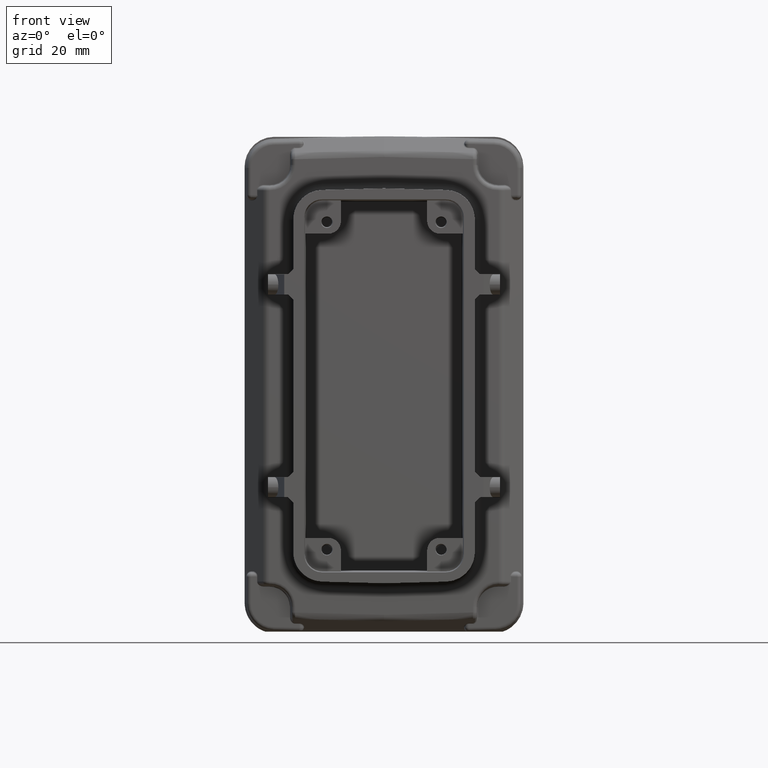
[diagram: clean part render]
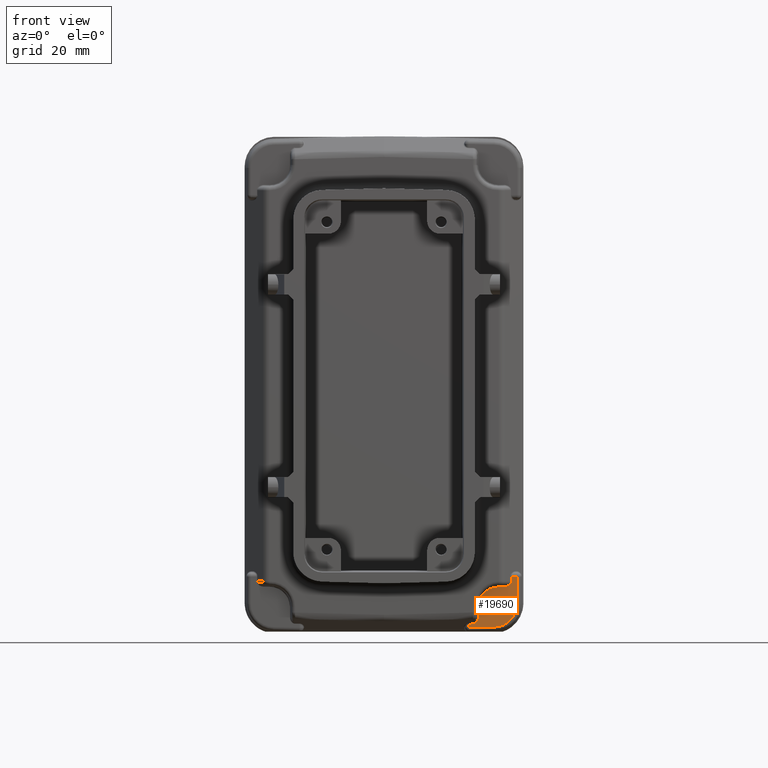
[diagram: same view with one face highlighted and labeled with its STEP entity id]
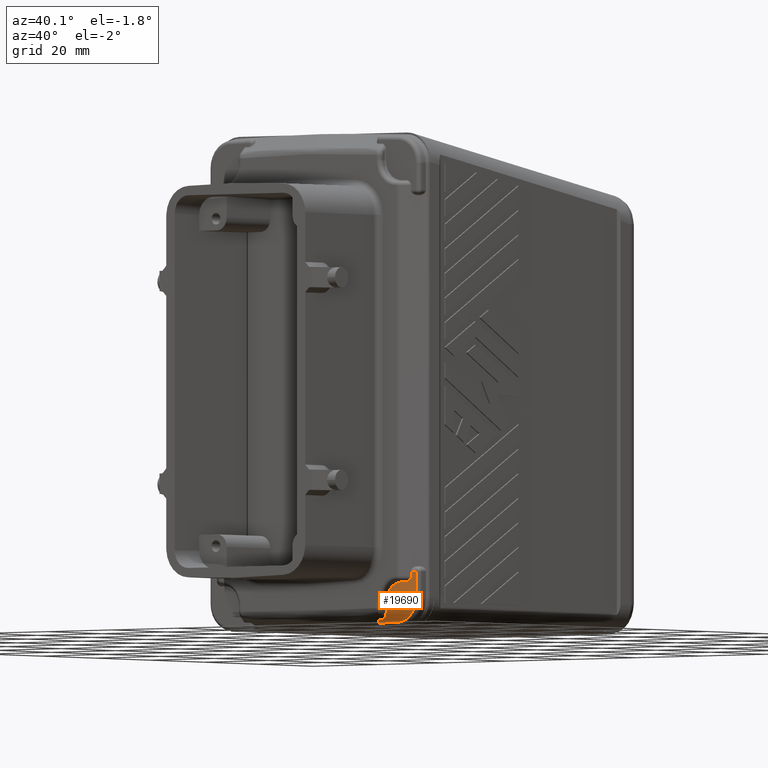
[diagram: same view with one face highlighted and labeled with its STEP entity id]
A machine part, front view. The second image highlights one B-rep face of the part: STEP entity #19690.
A second angle (auxiliary view) of the same face is appended — the face is thin or edge-on in the first view.
In plain terms, the highlighted planar face has unit normal (0, -1, 0).
Its self-contained STEP definition (entity closure, byte-faithful):
#17310=CARTESIAN_POINT('',(78.4446589845096,48.5366080000221,
-62.063839701323));
#17320=DIRECTION('',(0.,-1.,0.));
#17330=DIRECTION('',(-1.,-0.,0.));
#17340=AXIS2_PLACEMENT_3D('',#17310,#17320,#17330);
#17350=PLANE('',#17340);
#17360=CARTESIAN_POINT('',(78.1570667262473,48.5366080000221,
-62.3659833571352));
#17370=DIRECTION('',(0.,0.,-1.));
#17380=VECTOR('',#17370,1.);
#17390=LINE('',#17360,#17380);
#17400=CARTESIAN_POINT('',(78.1570667262473,48.5366080000221,
-62.3659833571352));
#17410=VERTEX_POINT('',#17400);
#17420=CARTESIAN_POINT('',(78.1570667262473,48.5366080000221,
-68.7900255583721));
#17430=VERTEX_POINT('',#17420);
#17440=EDGE_CURVE('',#17410,#17430,#17390,.T.);
#17450=ORIENTED_EDGE('',*,*,#17440,.F.);
#17460=CARTESIAN_POINT('',(72.6570667262474,48.5366080000221,
-68.7900255583722));
#17470=DIRECTION('',(0.,-1.,0.));
#17480=DIRECTION('',(-1.,-0.,0.));
#17490=AXIS2_PLACEMENT_3D('',#17460,#17470,#17480);
#17500=CIRCLE('',#17490,5.49999999999997);
#17510=CARTESIAN_POINT('',(72.8032594035732,48.5366080000221,
-74.288082278805));
#17520=VERTEX_POINT('',#17510);
#17530=EDGE_CURVE('',#17520,#17430,#17500,.T.);
#17540=ORIENTED_EDGE('',*,*,#17530,.T.);
#17550=CARTESIAN_POINT('',(66.6535023957567,48.5366080000221,
-74.451603589623));
#17560=DIRECTION('',(0.999646676442327,0.,0.0265804867865411));
#17570=VECTOR('',#17560,1.);
#17580=LINE('',#17550,#17570);
#17590=CARTESIAN_POINT('',(66.6535023957567,48.5366080000221,
-74.451603589623));
#17600=VERTEX_POINT('',#17590);
#17610=EDGE_CURVE('',#17600,#17520,#17580,.T.);
#17620=ORIENTED_EDGE('',*,*,#17610,.T.);
#17630=CARTESIAN_POINT('',(66.6535023957567,48.5366080000221,
-73.6171769037697));
#17640=DIRECTION('',(0.,0.,-1.));
#17650=VECTOR('',#17640,1.);
#17660=LINE('',#17630,#17650);
#17670=CARTESIAN_POINT('',(66.6535023957567,48.5366080000221,
-73.6171769037697));
#17680=VERTEX_POINT('',#17670);
#17690=EDGE_CURVE('',#17680,#17600,#17660,.T.);
#17700=ORIENTED_EDGE('',*,*,#17690,.T.);
#17710=CARTESIAN_POINT('',(67.6835364396617,48.5366080000221,
-73.5897884135921));
#17720=DIRECTION('',(-0.999646676264717,0.,-0.0265804934661675));
#17730=VECTOR('',#17720,1.);
#17740=LINE('',#17710,#17730);
#17750=CARTESIAN_POINT('',(67.6835364396617,48.5366080000221,
-73.5897884135921));
#17760=VERTEX_POINT('',#17750);
#17770=EDGE_CURVE('',#17760,#17680,#17740,.T.);
#17780=ORIENTED_EDGE('',*,*,#17770,.T.);
#17790=CARTESIAN_POINT('',(68.9570667262473,48.5366080000221,
-71.8928199143742));
#17800=CARTESIAN_POINT('',(68.9567444653897,48.5366080000221,
-71.9238029725956));
#17810=CARTESIAN_POINT('',(68.9564170294089,48.5366080000221,
-71.9547880094138));
#17820=CARTESIAN_POINT('',(68.9539977406632,48.5366080000221,
-72.0123987379919));
#17830=CARTESIAN_POINT('',(68.9523965079607,48.5366080000221,
-72.0390285902249));
#17840=CARTESIAN_POINT('',(68.9476182845529,48.5366080000221,
-72.0999848787994));
#17850=CARTESIAN_POINT('',(68.944119464932,48.5366080000221,
-72.1342744471158));
#17860=CARTESIAN_POINT('',(68.9354974842717,48.5366080000221,
-72.2026671157602));
#17870=CARTESIAN_POINT('',(68.9303777032738,48.5366080000221,
-72.2367521621076));
#17880=CARTESIAN_POINT('',(68.9185098579583,48.5366080000221,
-72.3046006525089));
#17890=CARTESIAN_POINT('',(68.9117691692871,48.5366080000221,
-72.3383462003113));
#17900=CARTESIAN_POINT('',(68.8966383392311,48.5366080000221,
-72.4054853429042));
#17910=CARTESIAN_POINT('',(68.888254494107,48.5366080000221,
-72.4388602358781));
#17920=CARTESIAN_POINT('',(68.8698180165733,48.5366080000221,
-72.5051634594953));
#17930=CARTESIAN_POINT('',(68.8597735527965,48.5366080000221,
-72.5380726557755));
#17940=CARTESIAN_POINT('',(68.8379921360751,48.5366080000221,
-72.6033488003336));
#17950=CARTESIAN_POINT('',(68.8262632992148,48.5366080000221,
-72.635700670746));
#17960=CARTESIAN_POINT('',(68.8042640377685,48.5366080000221,
-72.6916723827781));
#17970=CARTESIAN_POINT('',(68.7943780847173,48.5366080000221,
-72.7154258165451));
#17980=CARTESIAN_POINT('',(68.7736384830781,48.5366080000221,
-72.7625107715698));
#17990=CARTESIAN_POINT('',(68.7627895314721,48.5366080000221,
-72.7858365290364));
#18000=CARTESIAN_POINT('',(68.7401116875408,48.5366080000221,
-72.832016193882));
#18010=CARTESIAN_POINT('',(68.7282895123174,48.5366080000221,
-72.8548614430334));
#18020=CARTESIAN_POINT('',(68.7036538078459,48.5366080000221,
-72.9000238293156));
#18030=CARTESIAN_POINT('',(68.6908478040432,48.5366080000221,
-72.9223322272617));
#18040=CARTESIAN_POINT('',(68.6642476634799,48.5366080000221,
-72.966336007776));
#18050=CARTESIAN_POINT('',(68.6504629817714,48.5366080000221,
-72.9880232536462));
#18060=CARTESIAN_POINT('',(68.6218862145539,48.5366080000221,
-73.030738526941));
#18070=CARTESIAN_POINT('',(68.6071036058284,48.5366080000221,
-73.051757980811));
#18080=CARTESIAN_POINT('',(68.5765272004331,48.5366080000221,
-73.0930598600387));
#18090=CARTESIAN_POINT('',(68.5607440673112,48.5366080000221,
-73.1133340611239));
#18100=CARTESIAN_POINT('',(68.5281622647181,48.5366080000221,
-73.1530670464511));
#18110=CARTESIAN_POINT('',(68.5113846030198,48.5366080000221,
-73.1725075491908));
#18120=CARTESIAN_POINT('',(68.465640657769,48.5366080000221,
-73.222762031389));
#18130=CARTESIAN_POINT('',(68.4358508157715,48.5366080000221,
-73.2527805301291));
#18140=CARTESIAN_POINT('',(68.3735216342684,48.5366080000221,
-73.3099768861846));
#18150=CARTESIAN_POINT('',(68.341056634646,48.5366080000221,
-73.3371146407009));
#18160=CARTESIAN_POINT('',(68.2735534009287,48.5366080000221,
-73.388011000382));
#18170=CARTESIAN_POINT('',(68.2385793710192,48.5366080000221,
-73.4117580991413));
#18180=CARTESIAN_POINT('',(68.1662367222383,48.5366080000221,
-73.4553954776475));
#18190=CARTESIAN_POINT('',(68.1289165474826,48.5366080000221,
-73.4752863339356));
#18200=CARTESIAN_POINT('',(68.058667461451,48.5366080000221,
-73.5077194567976));
#18210=CARTESIAN_POINT('',(68.0260898618327,48.5366080000221,
-73.5209395797393));
#18220=CARTESIAN_POINT('',(67.9597839863573,48.5366080000221,
-73.5440870396869));
#18230=CARTESIAN_POINT('',(67.9260648416722,48.5366080000221,
-73.5540265801643));
#18240=CARTESIAN_POINT('',(67.857789903314,48.5366080000221,
-73.5703959883517));
#18250=CARTESIAN_POINT('',(67.8232419014527,48.5366080000221,
-73.5768365281548));
#18260=CARTESIAN_POINT('',(67.7797281239827,48.5366080000221,
-73.5826063820328));
#18270=CARTESIAN_POINT('',(67.7708589529006,48.5366080000221,
-73.5836493775055));
#18280=CARTESIAN_POINT('',(67.7530117078887,48.5366080000221,
-73.5855091371588));
#18290=CARTESIAN_POINT('',(67.7440336339589,48.5366080000221,
-73.5863259013393));
#18300=CARTESIAN_POINT('',(67.726270396876,48.5366080000221,
-73.5877213546338));
#18310=CARTESIAN_POINT('',(67.7176728133462,48.5366080000221,
-73.5881922937418));
#18320=CARTESIAN_POINT('',(67.700605750855,48.5366080000221,
-73.5890060682537));
#18330=CARTESIAN_POINT('',(67.6921362718936,48.5366080000221,
-73.5893489036575));
#18340=CARTESIAN_POINT('',(67.6835364396617,48.5366080000221,
-73.5897884135921));
#18350=B_SPLINE_CURVE_WITH_KNOTS('',3,(#17790,#17800,#17810,#17820,
#17830,#17840,#17850,#17860,#17870,#17880,#17890,#17900,#17910,#17920,
#17930,#17940,#17950,#17960,#17970,#17980,#17990,#18000,#18010,#18020,
#18030,#18040,#18050,#18060,#18070,#18080,#18090,#18100,#18110,#18120,
#18130,#18140,#18150,#18160,#18170,#18180,#18190,#18200,#18210,#18220,
#18230,#18240,#18250,#18260,#18270,#18280,#18290,#18300,#18310,#18320,
#18330,#18340),.UNSPECIFIED.,.F.,.F.,(4,2,2,2,2,2,2,2,2,2,2,2,2,2,2,2,2,
2,2,2,2,2,2,2,2,2,2,4),(0.,0.040706420611755,0.075747312958523,
0.121000976153419,0.166224707471147,0.21133484852492,0.256391359825277,
0.301377070839236,0.346283001651706,0.379798211739663,0.413254849632844,
0.4466436289207,0.479960565475777,0.513166219666024,0.546286050754739,
0.579308269402372,0.612230369366212,0.666201785537529,0.719853485612746,
0.773114117525355,0.826037627465791,0.869801415535064,0.913378042871177,
0.9567928912366,0.967625775248766,0.978458659260928,0.989229329630466,1.
),.UNSPECIFIED.);
#18360=CARTESIAN_POINT('',(68.9570667262473,48.5366080000221,
-71.8928199143742));
#18370=VERTEX_POINT('',#18360);
#18380=EDGE_CURVE('',#18370,#17760,#18350,.T.);
#18390=ORIENTED_EDGE('',*,*,#18380,.T.);
#18400=CARTESIAN_POINT('',(68.9570667192959,48.5366080000221,
-69.5059833571353));
#18410=DIRECTION('',(0.,0.,-1.));
#18420=VECTOR('',#18410,1.);
#18430=LINE('',#18400,#18420);
#18440=CARTESIAN_POINT('',(68.9570667633102,48.53660804474,
-69.5059833571353));
#18450=VERTEX_POINT('',#18440);
#18460=EDGE_CURVE('',#18450,#18370,#18430,.T.);
#18470=ORIENTED_EDGE('',*,*,#18460,.T.);
#18480=CARTESIAN_POINT('',(73.6570667453212,48.5366077459121,
-69.5059833735206));
#18490=DIRECTION('',(6.3580406125163E-8,0.999999999999997,
-5.46190411417561E-8));
#18500=DIRECTION('',(5.74481363213597E-14,5.46190411417525E-8,
0.999999999999999));
#18510=AXIS2_PLACEMENT_3D('',#18480,#18490,#18500);
#18520=CIRCLE('',#18510,4.699999982011);
#18530=CARTESIAN_POINT('',(73.6570667453215,48.5366080026216,
-64.8059833915096));
#18540=VERTEX_POINT('',#18530);
#18550=EDGE_CURVE('',#18450,#18540,#18520,.T.);
#18560=ORIENTED_EDGE('',*,*,#18550,.F.);
#18570=CARTESIAN_POINT('',(74.9138858027689,48.5366080000221,
-64.8059885241049));
#18580=DIRECTION('',(-0.999999999991528,0.,4.11639034272401E-6));
#18590=VECTOR('',#18580,1.);
#18600=LINE('',#18570,#18590);
#18610=CARTESIAN_POINT('',(74.9138858027689,48.5366080000221,
-64.8059885241049));
#18620=VERTEX_POINT('',#18610);
#18630=EDGE_CURVE('',#18620,#18540,#18600,.T.);
#18640=ORIENTED_EDGE('',*,*,#18630,.T.);
#18650=CARTESIAN_POINT('',(76.4085906074524,48.5366080000221,
-64.2629087423965));
#18660=CARTESIAN_POINT('',(76.4003157696914,48.5366080000221,
-64.2710787854791));
#18670=CARTESIAN_POINT('',(76.3919476584951,48.5366080000221,
-64.2791407171543));
#18680=CARTESIAN_POINT('',(76.3671388464001,48.5366080000221,
-64.3024785969592));
#18690=CARTESIAN_POINT('',(76.3504661195512,48.5366080000221,
-64.3174526589668));
#18700=CARTESIAN_POINT('',(76.3237956489975,48.5366080000221,
-64.3403696398012));
#18710=CARTESIAN_POINT('',(76.3139968562427,48.5366080000221,
-64.3485776094908));
#18720=CARTESIAN_POINT('',(76.2983655380003,48.5366080000221,
-64.3613503346987));
#18730=CARTESIAN_POINT('',(76.2925952174851,48.5366080000221,
-64.3659976430009));
#18740=CARTESIAN_POINT('',(76.2758900022619,48.5366080000221,
-64.3792607746138));
#18750=CARTESIAN_POINT('',(76.253873286709,48.5366080000221,
-64.3962744884382));
#18760=CARTESIAN_POINT('',(76.2314665398518,48.5366080000221,
-64.4126946117057));
#18770=CARTESIAN_POINT('',(76.1914509750044,48.5366080000221,
-64.4412652764324));
#18780=CARTESIAN_POINT('',(76.1621605295381,48.5366080000221,
-64.46081444229));
#18790=CARTESIAN_POINT('',(76.1023675759025,48.5366080000221,
-64.4982349436665));
#18800=CARTESIAN_POINT('',(76.0718845481386,48.5366080000221,
-64.5160776030266));
#18810=CARTESIAN_POINT('',(76.0099504211779,48.5366080000221,
-64.5500603670818));
#18820=CARTESIAN_POINT('',(75.9785214529016,48.5366080000221,
-64.566180967228));
#18830=CARTESIAN_POINT('',(75.9148289875124,48.5366080000221,
-64.596764758229));
#18840=CARTESIAN_POINT('',(75.8825866303866,48.5366080000221,
-64.611211459134));
#18850=CARTESIAN_POINT('',(75.8248773069765,48.5366080000221,
-64.6353541751875));
#18860=CARTESIAN_POINT('',(75.7995494784375,48.5366080000221,
-64.6453780672503));
#18870=CARTESIAN_POINT('',(75.7593473624292,48.5366080000221,
-64.6604268541641));
#18880=CARTESIAN_POINT('',(75.7428939914484,48.5366080000221,
-64.666384454427));
#18890=CARTESIAN_POINT('',(75.7263665001245,48.5366080000221,
-64.672149395857));
#18900=CARTESIAN_POINT('',(75.7234509088755,48.5366080000221,
-64.6731624242788));
#18910=CARTESIAN_POINT('',(75.7116609909412,48.5366080000221,
-64.6772482188236));
#18920=CARTESIAN_POINT('',(75.6998367658776,48.5366080000221,
-64.6812411965653));
#18930=CARTESIAN_POINT('',(75.6873813829831,48.5366080000221,
-64.6853374496219));
#18940=CARTESIAN_POINT('',(75.6855552681757,48.5366080000221,
-64.6859354337509));
#18950=CARTESIAN_POINT('',(75.6770869576526,48.5366080000221,
-64.6886965730204));
#18960=CARTESIAN_POINT('',(75.6704365520695,48.5366080000221,
-64.6908309969144));
#18970=CARTESIAN_POINT('',(75.6432034415288,48.5366080000221,
-64.6994337372294));
#18980=CARTESIAN_POINT('',(75.6225485203081,48.5366080000221,
-64.7056376195175));
#18990=CARTESIAN_POINT('',(75.5531756141201,48.5366080000221,
-64.7254311347088));
#19000=CARTESIAN_POINT('',(75.5010610901342,48.5366080000221,
-64.7384834539209));
#19010=CARTESIAN_POINT('',(75.4486013966641,48.5366080000221,
-64.7497951950807));
#19020=CARTESIAN_POINT('',(75.4426252969534,48.5366080000221,
-64.7510716751881));
#19030=CARTESIAN_POINT('',(75.3935597817379,48.5366080000221,
-64.7614589562241));
#19040=CARTESIAN_POINT('',(75.3442415336108,48.5366080000221,
-64.7703236280715));
#19050=CARTESIAN_POINT('',(75.2480497622979,48.5366080000221,
-64.7848408867422));
#19060=CARTESIAN_POINT('',(75.1982951130268,48.5366080000221,
-64.7908356098326));
#19070=CARTESIAN_POINT('',(75.135634990014,48.5366080000221,
-64.7965341282793));
#19080=CARTESIAN_POINT('',(75.1100866489316,48.5366080000221,
-64.7986650397447));
#19090=CARTESIAN_POINT('',(75.0845158225924,48.5366080000221,
-64.8004141578014));
#19100=CARTESIAN_POINT('',(75.0651562908463,48.5366080000221,
-64.8015938051677));
#19110=CARTESIAN_POINT('',(75.0585859206372,48.5366080000221,
-64.8019689726695));
#19120=CARTESIAN_POINT('',(75.034138533699,48.5366080000221,
-64.8032713748871));
#19130=CARTESIAN_POINT('',(75.0162533827929,48.5366080000221,
-64.8040381706471));
#19140=CARTESIAN_POINT('',(74.9895530472715,48.5366080000221,
-64.8049066363564));
#19150=CARTESIAN_POINT('',(74.980745210862,48.5366080000221,
-64.8051482882952));
#19160=CARTESIAN_POINT('',(74.9525887617243,48.5366080000221,
-64.8057775095764));
#19170=CARTESIAN_POINT('',(74.9332379703437,48.5366080000221,
-64.8059885609806));
#19180=CARTESIAN_POINT('',(74.9138858027689,48.5366080000221,
-64.8059885241049));
#19190=B_SPLINE_CURVE_WITH_KNOTS('',3,(#18650,#18660,#18670,#18680,
#18690,#18700,#18710,#18720,#18730,#18740,#18750,#18760,#18770,#18780,
#18790,#18800,#18810,#18820,#18830,#18840,#18850,#18860,#18870,#18880,
#18890,#18900,#18910,#18920,#18930,#18940,#18950,#18960,#18970,#18980,
#18990,#19000,#19010,#19020,#19030,#19040,#19050,#19060,#19070,#19080,
#19090,#19100,#19110,#19120,#19130,#19140,#19150,#19160,#19170,#19180),
.UNSPECIFIED.,.F.,.F.,(4,2,2,2,2,1,2,2,2,2,2,2,1,2,1,2,2,2,2,1,2,1,2,2,1
,2,2,2,2,4),(0.,0.020910690997535,0.061342127934748,0.084460042478174,
0.097877814004412,0.123110816656791,0.148343819309171,0.21249786304431,
0.277081815900712,0.341875181615649,0.406864553307074,0.457077871001868,
0.486063593767149,0.489389987694868,0.491764193327279,0.512452682948251,
0.516005394654449,0.528921579671201,0.568829473184415,0.662522911634358,
0.66838264580159,0.673855906089991,0.761369871965775,0.854465091235161,
0.878289333115895,0.902113574996628,0.914349378122036,0.947632403202165,
0.964014745435635,1.),.UNSPECIFIED.);
#19200=CARTESIAN_POINT('',(76.4085906074524,48.5366080000221,
-64.2629087423965));
#19210=VERTEX_POINT('',#19200);
#19220=EDGE_CURVE('',#19210,#18620,#19190,.T.);
#19230=ORIENTED_EDGE('',*,*,#19220,.T.);
#19240=CARTESIAN_POINT('',(76.7523679510842,48.5366080000221,
-63.5060836453508));
#19250=CARTESIAN_POINT('',(76.7518590857806,48.5366080000221,
-63.5237046966483));
#19260=CARTESIAN_POINT('',(76.7518568955199,48.5366080000221,
-63.5413307330507));
#19270=CARTESIAN_POINT('',(76.7503405353404,48.5366080000221,
-63.5676322375338));
#19280=CARTESIAN_POINT('',(76.7497167186626,48.5366080000221,
-63.5763119898265));
#19290=CARTESIAN_POINT('',(76.7469118057426,48.5366080000221,
-63.6088911580613));
#19300=CARTESIAN_POINT('',(76.7439212575397,48.5366080000221,
-63.6327112748298));
#19310=CARTESIAN_POINT('',(76.7361255487343,48.5366080000221,
-63.6800476066738));
#19320=CARTESIAN_POINT('',(76.7313162270073,48.5366080000221,
-63.7035666614053));
#19330=CARTESIAN_POINT('',(76.7199513954203,48.5366080000221,
-63.7501817296456));
#19340=CARTESIAN_POINT('',(76.7133905053581,48.5366080000221,
-63.7732771512035));
#19350=CARTESIAN_POINT('',(76.6986108453301,48.5366080000221,
-63.8189317155684));
#19360=CARTESIAN_POINT('',(76.6903828978103,48.5366080000221,
-63.8414973104125));
#19370=CARTESIAN_POINT('',(76.6683641686189,48.5366080000221,
-63.8958981388093));
#19380=CARTESIAN_POINT('',(76.6537179029436,48.5366080000221,
-63.9273686154515));
#19390=CARTESIAN_POINT('',(76.6215146224131,48.5366080000221,
-63.9887760638216));
#19400=CARTESIAN_POINT('',(76.6039479083586,48.5366080000221,
-64.0186923358844));
#19410=CARTESIAN_POINT('',(76.5662095114799,48.5366080000221,
-64.0769065967922));
#19420=CARTESIAN_POINT('',(76.5460388002071,48.5366080000221,
-64.1051637483274));
#19430=CARTESIAN_POINT('',(76.5034222667376,48.5366080000221,
-64.1599540545322));
#19440=CARTESIAN_POINT('',(76.4809860945312,48.5366080000221,
-64.1864467273331));
#19450=CARTESIAN_POINT('',(76.4416879731819,48.5366080000221,
-64.2294112364419));
#19460=CARTESIAN_POINT('',(76.4253301418939,48.5366080000221,
-64.2463812017341));
#19470=CARTESIAN_POINT('',(76.4085906074524,48.5366080000221,
-64.2629087423965));
#19480=B_SPLINE_CURVE_WITH_KNOTS('',3,(#19240,#19250,#19260,#19270,
#19280,#19290,#19300,#19310,#19320,#19330,#19340,#19350,#19360,#19370,
#19380,#19390,#19400,#19410,#19420,#19430,#19440,#19450,#19460,#19470),
.UNSPECIFIED.,.F.,.F.,(4,2,2,2,2,2,2,2,2,2,2,4),(0.,0.060973689808266,
0.091050287200302,0.174028098506312,0.257181182441798,0.340596553827827,
0.424310663691209,0.545863413590258,0.668191210139784,0.791409823212315,
0.915393803394194,1.),.UNSPECIFIED.);
#19490=CARTESIAN_POINT('',(76.7523694472526,48.5366082771292,
-63.506083645351));
#19500=VERTEX_POINT('',#19490);
#19510=EDGE_CURVE('',#19500,#19210,#19480,.T.);
#19520=ORIENTED_EDGE('',*,*,#19510,.T.);
#19530=CARTESIAN_POINT('',(76.7523696592534,48.5366079424669,
-62.365982157447));
#19540=DIRECTION('',(-1.85949078139477E-7,2.93537326851432E-7,
-0.99999999999994));
#19550=VECTOR('',#19540,1.);
#19560=LINE('',#19530,#19550);
#19570=CARTESIAN_POINT('',(76.7523696592532,48.5366079424672,
-62.3659833571351));
#19580=VERTEX_POINT('',#19570);
#19590=EDGE_CURVE('',#19580,#19500,#19560,.T.);
#19600=ORIENTED_EDGE('',*,*,#19590,.T.);
#19610=CARTESIAN_POINT('',(78.1925928769961,48.5366080000221,
-62.3659833571352));
#19620=DIRECTION('',(-1.,0.,0.));
#19630=VECTOR('',#19620,1.);
#19640=LINE('',#19610,#19630);
#19650=EDGE_CURVE('',#17410,#19580,#19640,.T.);
#19660=ORIENTED_EDGE('',*,*,#19650,.T.);
#19670=EDGE_LOOP('',(#19660,#19600,#19520,#19230,#18640,#18560,#18470,
#18390,#17780,#17700,#17620,#17540,#17450));
#19680=FACE_OUTER_BOUND('',#19670,.T.);
#19690=ADVANCED_FACE('',(#19680),#17350,.T.);